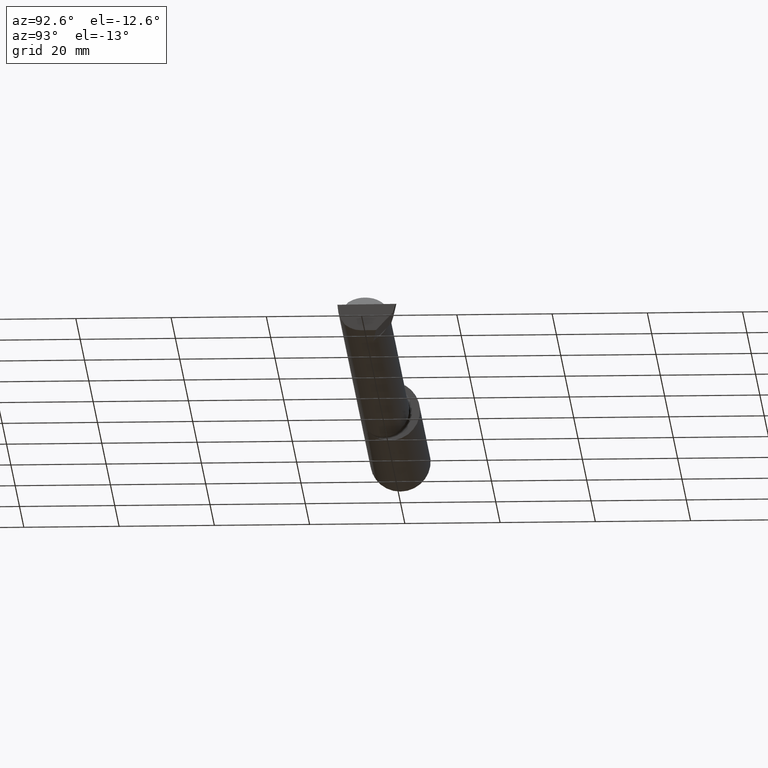
[diagram: clean part render]
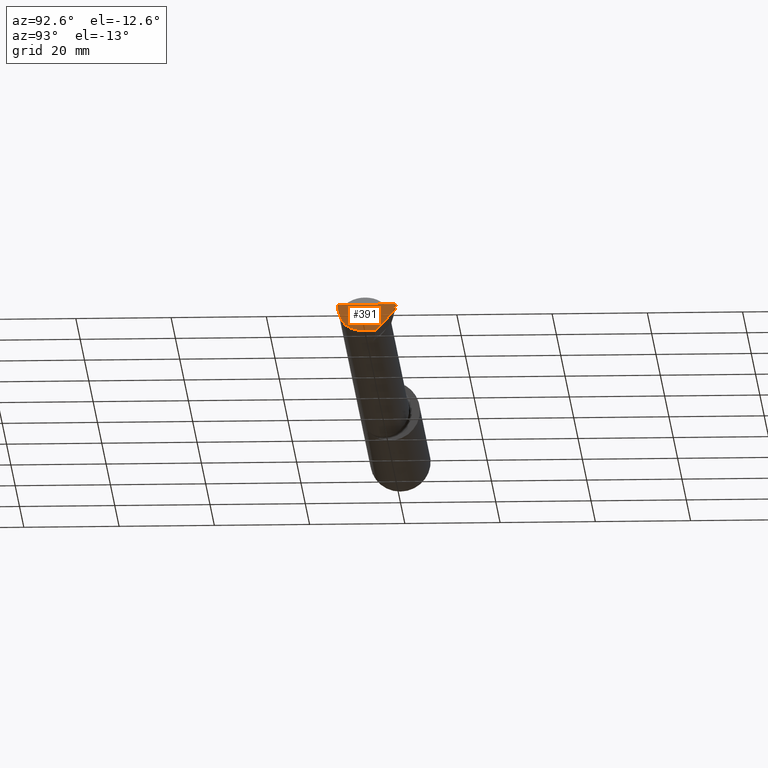
[diagram: same view with one face highlighted and labeled with its STEP entity id]
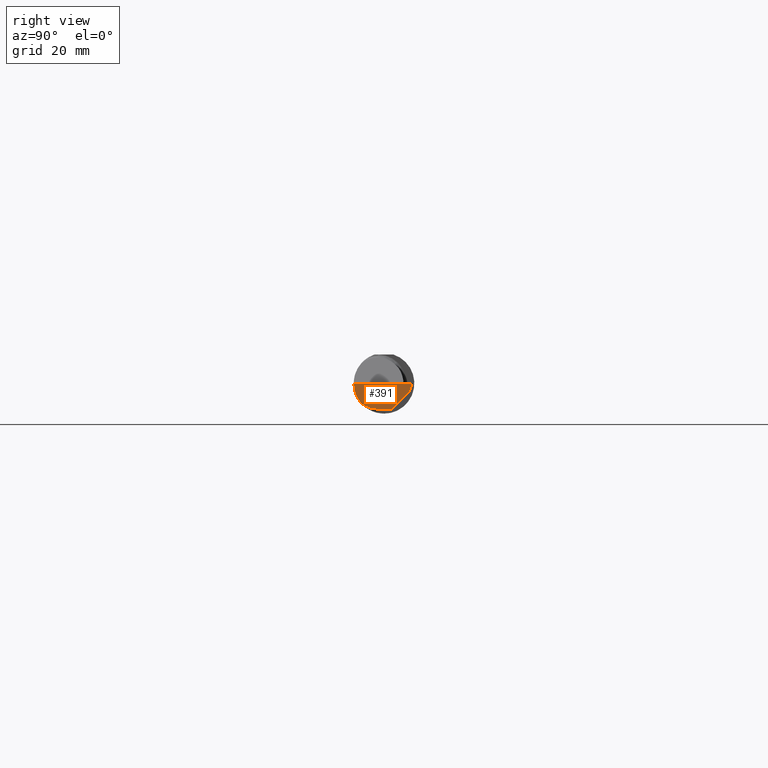
[diagram: same view with one face highlighted and labeled with its STEP entity id]
A machine part, auxiliary view. The second image highlights one B-rep face of the part: STEP entity #391.
A second angle (right view) of the same face is appended — the face is thin or edge-on in the first view.
In plain terms, the highlighted planar face has unit normal (-0.9922, 0.026, 0.1219).
Its self-contained STEP definition (entity closure, byte-faithful):
#9 = CARTESIAN_POINT ( 'NONE',  ( 5.987221270274242002, -0.2498499999999999888, -2.376254392518090263E-16 ) ) ;
#13 = DIRECTION ( 'NONE',  ( -0.1053106618241940323, -0.6976485211320168078, -0.7086580314005197501 ) ) ;
#21 = ORIENTED_EDGE ( 'NONE', *, *, #671, .F. ) ;
#26 = ORIENTED_EDGE ( 'NONE', *, *, #781, .F. ) ;
#36 = LINE ( 'NONE', #670, #414 ) ;
#40 = LINE ( 'NONE', #255, #283 ) ;
#58 = LINE ( 'NONE', #668, #444 ) ;
#61 = DIRECTION ( 'NONE',  ( 0.1219104985252926349, 0.000000000000000000, 0.9925410975618664811 ) ) ;
#86 = CARTESIAN_POINT ( 'NONE',  ( 5.990474961019650380, 0.2080126185684992302, -0.07112352112763106748 ) ) ;
#90 = VERTEX_POINT ( 'NONE', #254 ) ;
#117 = CARTESIAN_POINT ( 'NONE',  ( 5.987221270274242002, -0.2498499999999999888, -2.376254392518090263E-16 ) ) ;
#133 = CARTESIAN_POINT ( 'NONE',  ( 5.964907988924525561, -0.1021668565906571902, -0.2131499999999999506 ) ) ;
#158 = CARTESIAN_POINT ( 'NONE',  ( 5.999806390372789622, 0.2307563466314217493, -2.389946825684086957E-16 ) ) ;
#172 = ORIENTED_EDGE ( 'NONE', *, *, #737, .T. ) ;
#192 = CARTESIAN_POINT ( 'NONE',  ( 5.968492717492765109, -0.1868028301886797693, -0.1659208399614083285 ) ) ;
#202 =( BOUNDED_CURVE ( )  B_SPLINE_CURVE ( 3, ( #326, #863, #133, #667 ),
 .UNSPECIFIED., .F., .F. ) 
 B_SPLINE_CURVE_WITH_KNOTS ( ( 4, 4 ),
 ( 5.814587959757558266, 6.493234751459799448 ),
 .UNSPECIFIED. ) 
 CURVE ( )  GEOMETRIC_REPRESENTATION_ITEM ( )  RATIONAL_B_SPLINE_CURVE ( ( 1.000000000000000000, 0.9619867256453021875, 0.9619867256453021875, 1.000000000000000000 ) ) 
 REPRESENTATION_ITEM ( '' )  );
#240 = ORIENTED_EDGE ( 'NONE', *, *, #509, .F. ) ;
#252 = FACE_OUTER_BOUND ( 'NONE', #418, .T. ) ;
#254 = CARTESIAN_POINT ( 'NONE',  ( 5.966195468375011579, -0.05299999999999998462, -0.2131499999999999229 ) ) ;
#255 = CARTESIAN_POINT ( 'NONE',  ( 5.960530997312603496, 0.1350294407609074487, -0.2993543799560085539 ) ) ;
#283 = VECTOR ( 'NONE', #312, 39.37007874015748854 ) ;
#303 = VECTOR ( 'NONE', #775, 39.37007874015748854 ) ;
#312 = DIRECTION ( 'NONE',  ( 0.1240019227989464512, 0.3022330132596632857, 0.9451342385281300551 ) ) ;
#326 = CARTESIAN_POINT ( 'NONE',  ( 5.968492717492765109, -0.1868028301886797693, -0.1659208399614083285 ) ) ;
#351 = VERTEX_POINT ( 'NONE', #158 ) ;
#391 = ADVANCED_FACE ( 'NONE', ( #252 ), #844, .F. ) ;
#405 = CARTESIAN_POINT ( 'NONE',  ( 5.973097331270540877, -0.2278791102234775101, -0.1196748990301323562 ) ) ;
#414 = VECTOR ( 'NONE', #13, 39.37007874015748854 ) ;
#418 = EDGE_LOOP ( 'NONE', ( #26, #172, #240, #727, #440, #21 ) ) ;
#440 = ORIENTED_EDGE ( 'NONE', *, *, #790, .T. ) ;
#444 = VECTOR ( 'NONE', #466, 39.37007874015748854 ) ;
#458 = VERTEX_POINT ( 'NONE', #117 ) ;
#466 = DIRECTION ( 'NONE',  ( 0.02617694830788138902, 0.9996573249755570378, -2.848015055786208837E-18 ) ) ;
#472 =( BOUNDED_CURVE ( )  B_SPLINE_CURVE ( 3, ( #616, #405, #676, #9 ),
 .UNSPECIFIED., .F., .F. ) 
 B_SPLINE_CURVE_WITH_KNOTS ( ( 4, 4 ),
 ( 0.6344818218798038423, 1.360746882514682454 ),
 .UNSPECIFIED. ) 
 CURVE ( )  GEOMETRIC_REPRESENTATION_ITEM ( )  RATIONAL_B_SPLINE_CURVE ( ( 1.000000000000000000, 0.9565258159411000882, 0.9565258159411000882, 1.000000000000000000 ) ) 
 REPRESENTATION_ITEM ( '' )  );
#505 = CARTESIAN_POINT ( 'NONE',  ( 5.966218632342877193, -0.05211540375603042341, -0.2131499999999999229 ) ) ;
#509 = EDGE_CURVE ( 'NONE', #458, #351, #58, .T. ) ;
#523 = DIRECTION ( 'NONE',  ( -0.9922060308645463955, 0.02598182930470145299, 0.1218693434051571906 ) ) ;
#571 = LINE ( 'NONE', #505, #303 ) ;
#581 = EDGE_CURVE ( 'NONE', #822, #458, #472, .T. ) ;
#593 = CARTESIAN_POINT ( 'NONE',  ( 5.963949576795525509, -0.1303119248116117179, -0.2149526021148824573 ) ) ;
#616 = CARTESIAN_POINT ( 'NONE',  ( 5.968492717492765109, -0.1868028301886797693, -0.1659208399614083285 ) ) ;
#621 = VERTEX_POINT ( 'NONE', #86 ) ;
#657 = AXIS2_PLACEMENT_3D ( 'NONE', #593, #523, #61 ) ;
#667 = CARTESIAN_POINT ( 'NONE',  ( 5.966195468375011579, -0.05299999999999998462, -0.2131499999999999229 ) ) ;
#668 = CARTESIAN_POINT ( 'NONE',  ( 5.987226101480008111, -0.2496655036952226958, -2.376259648801824953E-16 ) ) ;
#670 = CARTESIAN_POINT ( 'NONE',  ( 5.983714411583739512, 0.1632262006094397921, -0.1166167083458149317 ) ) ;
#671 = EDGE_CURVE ( 'NONE', #825, #90, #571, .T. ) ;
#676 = CARTESIAN_POINT ( 'NONE',  ( 5.979623920331828657, -0.2498499999999999610, -0.06185424669427488920 ) ) ;
#725 = CARTESIAN_POINT ( 'NONE',  ( 5.969369008890597073, 0.06819262280682680810, -0.2131499999999999506 ) ) ;
#727 = ORIENTED_EDGE ( 'NONE', *, *, #581, .F. ) ;
#737 = EDGE_CURVE ( 'NONE', #621, #351, #40, .T. ) ;
#775 = DIRECTION ( 'NONE',  ( -0.02617694830788136473, -0.9996573249755570378, 1.707029659308869311E-16 ) ) ;
#781 = EDGE_CURVE ( 'NONE', #621, #825, #36, .T. ) ;
#790 = EDGE_CURVE ( 'NONE', #822, #90, #202, .T. ) ;
#822 = VERTEX_POINT ( 'NONE', #192 ) ;
#825 = VERTEX_POINT ( 'NONE', #725 ) ;
#844 = PLANE ( 'NONE',  #657 ) ;
#863 = CARTESIAN_POINT ( 'NONE',  ( 5.965703997523712054, -0.1485302233682062600, -0.1967848538638755085 ) ) ;